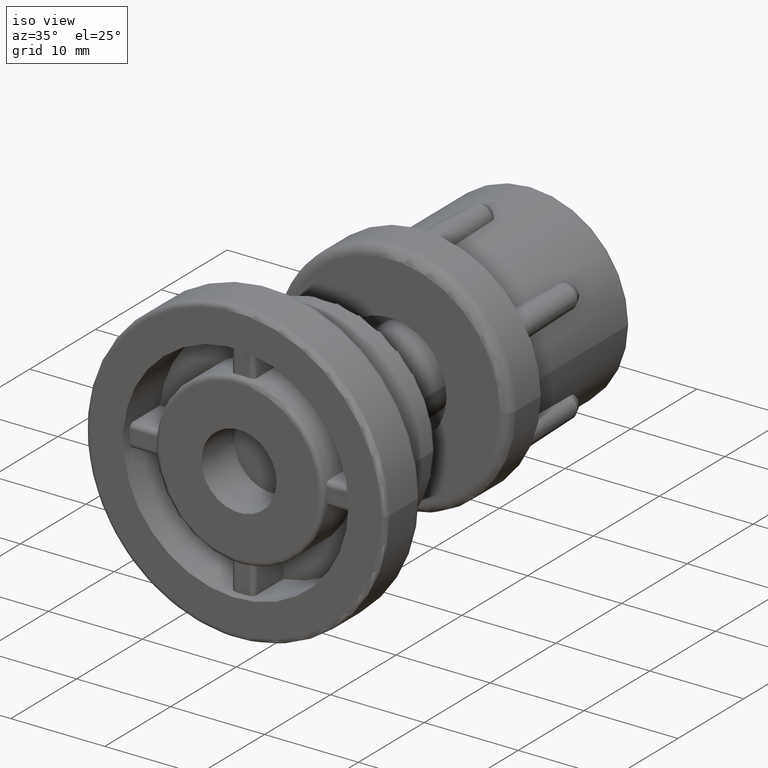
[diagram: clean part render]
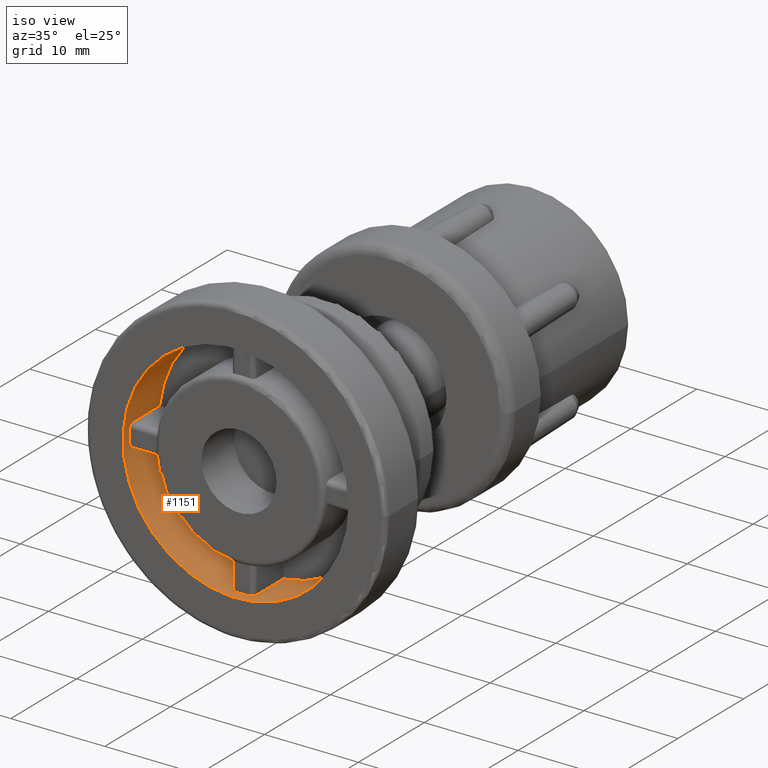
[diagram: same view with one face highlighted and labeled with its STEP entity id]
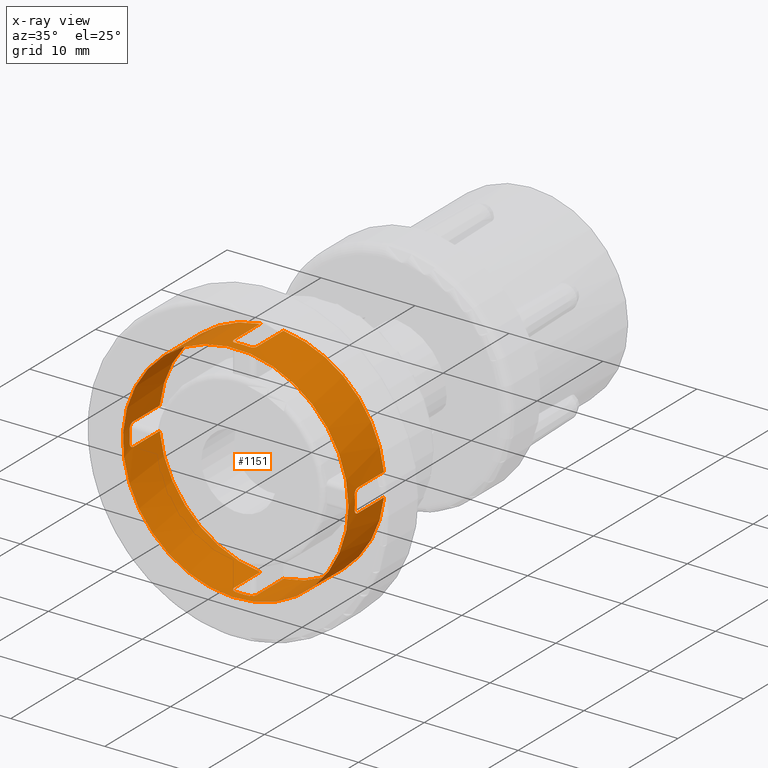
[diagram: x-ray of the same camera — body ghosted, the highlighted face saturated]
A machine part, iso view. The second image highlights one B-rep face of the part: STEP entity #1151.
The next image is the same camera in x-ray: the body ghosted, the highlighted face saturated — about 0% of this face is hidden behind the body in this view.
In plain terms, the highlighted cylindrical surface (bore or boss wall) has radius 12 mm, axis along (0, 1, 0).
Its self-contained STEP definition (entity closure, byte-faithful):
#52=FACE_BOUND('',#322,.T.);
#86=CIRCLE('',#1231,12.);
#93=CIRCLE('',#1245,12.);
#94=CIRCLE('',#1247,12.);
#95=CIRCLE('',#1249,12.);
#96=CIRCLE('',#1251,12.);
#97=CIRCLE('',#1253,12.);
#99=CIRCLE('',#1256,12.);
#100=CIRCLE('',#1258,12.);
#101=CIRCLE('',#1261,12.);
#231=FACE_OUTER_BOUND('',#321,.T.);
#321=EDGE_LOOP('',(#920,#921,#922,#923,#924,#925,#926,#927,#928,#929,#930,
#931,#932,#933,#934,#935,#936,#937,#938,#939,#940,#941,#942,#943));
#322=EDGE_LOOP('',(#944));
#380=LINE('',#1731,#420);
#383=LINE('',#1761,#423);
#390=LINE('',#1797,#430);
#393=LINE('',#1827,#433);
#400=LINE('',#1863,#440);
#403=LINE('',#1893,#443);
#410=LINE('',#1929,#450);
#413=LINE('',#1959,#453);
#420=VECTOR('',#1356,4.);
#423=VECTOR('',#1363,4.);
#430=VECTOR('',#1374,4.);
#433=VECTOR('',#1381,4.);
#440=VECTOR('',#1392,4.);
#443=VECTOR('',#1399,4.);
#450=VECTOR('',#1410,4.);
#453=VECTOR('',#1417,4.);
#457=B_SPLINE_CURVE_WITH_KNOTS('',3,(#1715,#1716,#1717,#1718,#1719,#1720,
#1721,#1722,#1723,#1724),.UNSPECIFIED.,.F.,.F.,(4,2,2,2,4),(-0.0754565969526208,
-0.0565650622235629,-0.037673527494505,-0.0188367637472525,0.),
 .UNSPECIFIED.);
#459=B_SPLINE_CURVE_WITH_KNOTS('',3,(#1748,#1749,#1750,#1751,#1752,#1753,
#1754,#1755,#1756,#1757),.UNSPECIFIED.,.F.,.F.,(4,2,2,2,4),(0.,0.0188367637472525,
0.0376735274945049,0.0565650622235629,0.0754565969526208),.UNSPECIFIED.);
#461=B_SPLINE_CURVE_WITH_KNOTS('',3,(#1781,#1782,#1783,#1784,#1785,#1786,
#1787,#1788,#1789,#1790),.UNSPECIFIED.,.F.,.F.,(4,2,2,2,4),(-0.0754565969526208,
-0.0565650622235629,-0.037673527494505,-0.0188367637472525,0.),
 .UNSPECIFIED.);
#463=B_SPLINE_CURVE_WITH_KNOTS('',3,(#1814,#1815,#1816,#1817,#1818,#1819,
#1820,#1821,#1822,#1823),.UNSPECIFIED.,.F.,.F.,(4,2,2,2,4),(0.,0.0188367637472525,
0.0376735274945049,0.0565650622235628,0.0754565969526208),.UNSPECIFIED.);
#465=B_SPLINE_CURVE_WITH_KNOTS('',3,(#1847,#1848,#1849,#1850,#1851,#1852,
#1853,#1854,#1855,#1856),.UNSPECIFIED.,.F.,.F.,(4,2,2,2,4),(-0.0754565969526208,
-0.0565650622235629,-0.037673527494505,-0.0188367637472525,0.),
 .UNSPECIFIED.);
#467=B_SPLINE_CURVE_WITH_KNOTS('',3,(#1880,#1881,#1882,#1883,#1884,#1885,
#1886,#1887,#1888,#1889),.UNSPECIFIED.,.F.,.F.,(4,2,2,2,4),(0.,0.0188367637472525,
0.0376735274945049,0.0565650622235628,0.0754565969526207),.UNSPECIFIED.);
#469=B_SPLINE_CURVE_WITH_KNOTS('',3,(#1913,#1914,#1915,#1916,#1917,#1918,
#1919,#1920,#1921,#1922),.UNSPECIFIED.,.F.,.F.,(4,2,2,2,4),(-0.0754565969526208,
-0.0565650622235629,-0.0376735274945049,-0.0188367637472525,0.),
 .UNSPECIFIED.);
#471=B_SPLINE_CURVE_WITH_KNOTS('',3,(#1946,#1947,#1948,#1949,#1950,#1951,
#1952,#1953,#1954,#1955),.UNSPECIFIED.,.F.,.F.,(4,2,2,2,4),(0.,0.0188367637472525,
0.0376735274945049,0.0565650622235628,0.0754565969526208),.UNSPECIFIED.);
#498=VERTEX_POINT('',#1712);
#499=VERTEX_POINT('',#1714);
#501=VERTEX_POINT('',#1729);
#504=VERTEX_POINT('',#1745);
#505=VERTEX_POINT('',#1747);
#506=VERTEX_POINT('',#1760);
#510=VERTEX_POINT('',#1778);
#511=VERTEX_POINT('',#1780);
#513=VERTEX_POINT('',#1795);
#516=VERTEX_POINT('',#1811);
#517=VERTEX_POINT('',#1813);
#518=VERTEX_POINT('',#1826);
#522=VERTEX_POINT('',#1844);
#523=VERTEX_POINT('',#1846);
#525=VERTEX_POINT('',#1861);
#528=VERTEX_POINT('',#1877);
#529=VERTEX_POINT('',#1879);
#530=VERTEX_POINT('',#1892);
#534=VERTEX_POINT('',#1910);
#535=VERTEX_POINT('',#1912);
#537=VERTEX_POINT('',#1927);
#540=VERTEX_POINT('',#1943);
#541=VERTEX_POINT('',#1945);
#542=VERTEX_POINT('',#1958);
#549=VERTEX_POINT('',#1992);
#611=EDGE_CURVE('',#498,#499,#457,.F.);
#615=EDGE_CURVE('',#498,#501,#380,.T.);
#618=EDGE_CURVE('',#504,#505,#459,.F.);
#620=EDGE_CURVE('',#506,#505,#383,.T.);
#625=EDGE_CURVE('',#510,#511,#461,.F.);
#629=EDGE_CURVE('',#510,#513,#390,.T.);
#632=EDGE_CURVE('',#516,#517,#463,.F.);
#634=EDGE_CURVE('',#518,#517,#393,.T.);
#639=EDGE_CURVE('',#522,#523,#465,.F.);
#643=EDGE_CURVE('',#522,#525,#400,.T.);
#646=EDGE_CURVE('',#528,#529,#467,.F.);
#648=EDGE_CURVE('',#530,#529,#403,.T.);
#653=EDGE_CURVE('',#534,#535,#469,.F.);
#657=EDGE_CURVE('',#534,#537,#410,.T.);
#660=EDGE_CURVE('',#540,#541,#471,.F.);
#662=EDGE_CURVE('',#542,#541,#413,.T.);
#681=EDGE_CURVE('',#549,#549,#86,.T.);
#688=EDGE_CURVE('',#540,#535,#93,.T.);
#689=EDGE_CURVE('',#504,#499,#94,.T.);
#690=EDGE_CURVE('',#516,#511,#95,.T.);
#691=EDGE_CURVE('',#525,#518,#96,.T.);
#692=EDGE_CURVE('',#513,#506,#97,.T.);
#694=EDGE_CURVE('',#501,#542,#99,.T.);
#695=EDGE_CURVE('',#537,#530,#100,.T.);
#696=EDGE_CURVE('',#528,#523,#101,.T.);
#920=ORIENTED_EDGE('',*,*,#657,.T.);
#921=ORIENTED_EDGE('',*,*,#695,.T.);
#922=ORIENTED_EDGE('',*,*,#648,.T.);
#923=ORIENTED_EDGE('',*,*,#646,.F.);
#924=ORIENTED_EDGE('',*,*,#696,.T.);
#925=ORIENTED_EDGE('',*,*,#639,.F.);
#926=ORIENTED_EDGE('',*,*,#643,.T.);
#927=ORIENTED_EDGE('',*,*,#691,.T.);
#928=ORIENTED_EDGE('',*,*,#634,.T.);
#929=ORIENTED_EDGE('',*,*,#632,.F.);
#930=ORIENTED_EDGE('',*,*,#690,.T.);
#931=ORIENTED_EDGE('',*,*,#625,.F.);
#932=ORIENTED_EDGE('',*,*,#629,.T.);
#933=ORIENTED_EDGE('',*,*,#692,.T.);
#934=ORIENTED_EDGE('',*,*,#620,.T.);
#935=ORIENTED_EDGE('',*,*,#618,.F.);
#936=ORIENTED_EDGE('',*,*,#689,.T.);
#937=ORIENTED_EDGE('',*,*,#611,.F.);
#938=ORIENTED_EDGE('',*,*,#615,.T.);
#939=ORIENTED_EDGE('',*,*,#694,.T.);
#940=ORIENTED_EDGE('',*,*,#662,.T.);
#941=ORIENTED_EDGE('',*,*,#660,.F.);
#942=ORIENTED_EDGE('',*,*,#688,.T.);
#943=ORIENTED_EDGE('',*,*,#653,.F.);
#944=ORIENTED_EDGE('',*,*,#681,.F.);
#1101=CYLINDRICAL_SURFACE('',#1265,12.);
#1151=ADVANCED_FACE('',(#231,#52),#1101,.F.);
#1231=AXIS2_PLACEMENT_3D('',#1993,#1468,#1469);
#1245=AXIS2_PLACEMENT_3D('',#2013,#1496,#1497);
#1247=AXIS2_PLACEMENT_3D('',#2015,#1500,#1501);
#1249=AXIS2_PLACEMENT_3D('',#2017,#1504,#1505);
#1251=AXIS2_PLACEMENT_3D('',#2019,#1508,#1509);
#1253=AXIS2_PLACEMENT_3D('',#2021,#1512,#1513);
#1256=AXIS2_PLACEMENT_3D('',#2024,#1518,#1519);
#1258=AXIS2_PLACEMENT_3D('',#2026,#1522,#1523);
#1261=AXIS2_PLACEMENT_3D('',#2029,#1528,#1529);
#1265=AXIS2_PLACEMENT_3D('',#2034,#1536,#1537);
#1356=DIRECTION('',(0.,1.,0.));
#1363=DIRECTION('',(0.,-1.,0.));
#1374=DIRECTION('',(0.,1.,0.));
#1381=DIRECTION('',(0.,-1.,0.));
#1392=DIRECTION('',(0.,1.,0.));
#1399=DIRECTION('',(0.,-1.,0.));
#1410=DIRECTION('',(0.,1.,0.));
#1417=DIRECTION('',(0.,-1.,0.));
#1468=DIRECTION('center_axis',(-6.34413156928661E-17,1.,0.));
#1469=DIRECTION('ref_axis',(-1.,0.,0.));
#1496=DIRECTION('center_axis',(0.,1.,0.));
#1497=DIRECTION('ref_axis',(-1.,0.,0.));
#1500=DIRECTION('center_axis',(0.,1.,0.));
#1501=DIRECTION('ref_axis',(-1.,0.,0.));
#1504=DIRECTION('center_axis',(0.,1.,0.));
#1505=DIRECTION('ref_axis',(-1.,0.,0.));
#1508=DIRECTION('center_axis',(-6.34413156928661E-17,1.,0.));
#1509=DIRECTION('ref_axis',(-1.,-6.34413156928661E-17,0.));
#1512=DIRECTION('center_axis',(-6.34413156928661E-17,1.,0.));
#1513=DIRECTION('ref_axis',(-1.,-6.34413156928661E-17,0.));
#1518=DIRECTION('center_axis',(-6.34413156928661E-17,1.,0.));
#1519=DIRECTION('ref_axis',(-1.,-6.34413156928661E-17,0.));
#1522=DIRECTION('center_axis',(-6.34413156928661E-17,1.,0.));
#1523=DIRECTION('ref_axis',(-1.,-6.34413156928661E-17,0.));
#1528=DIRECTION('center_axis',(0.,1.,0.));
#1529=DIRECTION('ref_axis',(-1.,0.,0.));
#1536=DIRECTION('center_axis',(0.,1.,0.));
#1537=DIRECTION('ref_axis',(-1.,0.,0.));
#1712=CARTESIAN_POINT('',(-11.9373102079154,1.5,1.225));
#1714=CARTESIAN_POINT('',(-11.9780789361233,1.,0.724999999999999));
#1715=CARTESIAN_POINT('Ctrl Pts',(-11.9780789361233,1.,0.724999999999999));
#1716=CARTESIAN_POINT('Ctrl Pts',(-11.9742743909348,1.,0.787856748391434));
#1717=CARTESIAN_POINT('Ctrl Pts',(-11.9696707944417,1.01257367721032,0.854868964120006));
#1718=CARTESIAN_POINT('Ctrl Pts',(-11.9602301282645,1.06367264565834,0.978118168805255));
#1719=CARTESIAN_POINT('Ctrl Pts',(-11.9554210529607,1.10219702860214,1.03435767705418));
#1720=CARTESIAN_POINT('Ctrl Pts',(-11.9474154491353,1.19099702501983,1.12304983447038));
#1721=CARTESIAN_POINT('Ctrl Pts',(-11.9436860692694,1.2471564277975,1.16147283190642));
#1722=CARTESIAN_POINT('Ctrl Pts',(-11.9386189943723,1.37026226700893,1.21244899645157));
#1723=CARTESIAN_POINT('Ctrl Pts',(-11.9373102079153,1.43721078750916,1.225));
#1724=CARTESIAN_POINT('Ctrl Pts',(-11.9373102079154,1.5,1.225));
#1729=CARTESIAN_POINT('',(-11.9373102079154,5.5,1.225));
#1731=CARTESIAN_POINT('',(-11.9373102079154,0.,1.225));
#1745=CARTESIAN_POINT('',(-11.9780789361233,1.,-0.725000000000001));
#1747=CARTESIAN_POINT('',(-11.9373102079154,1.5,-1.225));
#1748=CARTESIAN_POINT('Ctrl Pts',(-11.9373102079154,1.5,-1.225));
#1749=CARTESIAN_POINT('Ctrl Pts',(-11.9373102079154,1.43721078750916,-1.225));
#1750=CARTESIAN_POINT('Ctrl Pts',(-11.9386189943723,1.37026226700893,-1.21244899645157));
#1751=CARTESIAN_POINT('Ctrl Pts',(-11.9436860692694,1.2471564277975,-1.16147283190642));
#1752=CARTESIAN_POINT('Ctrl Pts',(-11.9474154491353,1.19099702501983,-1.12304983447038));
#1753=CARTESIAN_POINT('Ctrl Pts',(-11.9554210529607,1.10219702860214,-1.03435767705418));
#1754=CARTESIAN_POINT('Ctrl Pts',(-11.9602301282645,1.06367264565834,-0.978118168805258));
#1755=CARTESIAN_POINT('Ctrl Pts',(-11.9696707944416,1.01257367721032,-0.854868964120009));
#1756=CARTESIAN_POINT('Ctrl Pts',(-11.9742743909348,1.,-0.787856748391438));
#1757=CARTESIAN_POINT('Ctrl Pts',(-11.9780789361233,1.,-0.725000000000001));
#1760=CARTESIAN_POINT('',(-11.9373102079154,5.5,-1.225));
#1761=CARTESIAN_POINT('',(-11.9373102079154,0.,-1.225));
#1778=CARTESIAN_POINT('',(-1.225,1.5,-11.9373102079154));
#1780=CARTESIAN_POINT('',(-0.724999999999999,1.,-11.9780789361233));
#1781=CARTESIAN_POINT('Ctrl Pts',(-0.724999999999999,1.,-11.9780789361233));
#1782=CARTESIAN_POINT('Ctrl Pts',(-0.787856748391435,1.,-11.9742743909348));
#1783=CARTESIAN_POINT('Ctrl Pts',(-0.854868964120007,1.01257367721032,-11.9696707944417));
#1784=CARTESIAN_POINT('Ctrl Pts',(-0.978118168805256,1.06367264565834,-11.9602301282645));
#1785=CARTESIAN_POINT('Ctrl Pts',(-1.03435767705418,1.10219702860214,-11.9554210529607));
#1786=CARTESIAN_POINT('Ctrl Pts',(-1.12304983447038,1.19099702501983,-11.9474154491353));
#1787=CARTESIAN_POINT('Ctrl Pts',(-1.16147283190642,1.2471564277975,-11.9436860692694));
#1788=CARTESIAN_POINT('Ctrl Pts',(-1.21244899645157,1.37026226700893,-11.9386189943723));
#1789=CARTESIAN_POINT('Ctrl Pts',(-1.225,1.43721078750916,-11.9373102079153));
#1790=CARTESIAN_POINT('Ctrl Pts',(-1.225,1.5,-11.9373102079154));
#1795=CARTESIAN_POINT('',(-1.225,5.5,-11.9373102079154));
#1797=CARTESIAN_POINT('',(-1.225,0.,-11.9373102079154));
#1811=CARTESIAN_POINT('',(0.725000000000001,1.,-11.9780789361233));
#1813=CARTESIAN_POINT('',(1.225,1.5,-11.9373102079154));
#1814=CARTESIAN_POINT('Ctrl Pts',(1.225,1.5,-11.9373102079154));
#1815=CARTESIAN_POINT('Ctrl Pts',(1.225,1.43721078750916,-11.9373102079154));
#1816=CARTESIAN_POINT('Ctrl Pts',(1.21244899645157,1.37026226700893,-11.9386189943723));
#1817=CARTESIAN_POINT('Ctrl Pts',(1.16147283190642,1.2471564277975,-11.9436860692694));
#1818=CARTESIAN_POINT('Ctrl Pts',(1.12304983447038,1.19099702501983,-11.9474154491353));
#1819=CARTESIAN_POINT('Ctrl Pts',(1.03435767705418,1.10219702860214,-11.9554210529607));
#1820=CARTESIAN_POINT('Ctrl Pts',(0.978118168805258,1.06367264565834,-11.9602301282645));
#1821=CARTESIAN_POINT('Ctrl Pts',(0.854868964120009,1.01257367721032,-11.9696707944417));
#1822=CARTESIAN_POINT('Ctrl Pts',(0.787856748391437,1.,-11.9742743909348));
#1823=CARTESIAN_POINT('Ctrl Pts',(0.725000000000001,1.,-11.9780789361233));
#1826=CARTESIAN_POINT('',(1.225,5.5,-11.9373102079154));
#1827=CARTESIAN_POINT('',(1.225,0.,-11.9373102079154));
#1844=CARTESIAN_POINT('',(11.9373102079154,1.5,-1.225));
#1846=CARTESIAN_POINT('',(11.9780789361233,1.,-0.725));
#1847=CARTESIAN_POINT('Ctrl Pts',(11.9780789361233,1.,-0.725));
#1848=CARTESIAN_POINT('Ctrl Pts',(11.9742743909348,1.,-0.787856748391436));
#1849=CARTESIAN_POINT('Ctrl Pts',(11.9696707944417,1.01257367721032,-0.854868964120008));
#1850=CARTESIAN_POINT('Ctrl Pts',(11.9602301282645,1.06367264565834,-0.978118168805257));
#1851=CARTESIAN_POINT('Ctrl Pts',(11.9554210529607,1.10219702860214,-1.03435767705418));
#1852=CARTESIAN_POINT('Ctrl Pts',(11.9474154491353,1.19099702501983,-1.12304983447038));
#1853=CARTESIAN_POINT('Ctrl Pts',(11.9436860692694,1.2471564277975,-1.16147283190642));
#1854=CARTESIAN_POINT('Ctrl Pts',(11.9386189943723,1.37026226700893,-1.21244899645157));
#1855=CARTESIAN_POINT('Ctrl Pts',(11.9373102079154,1.43721078750916,-1.225));
#1856=CARTESIAN_POINT('Ctrl Pts',(11.9373102079154,1.5,-1.225));
#1861=CARTESIAN_POINT('',(11.9373102079154,5.5,-1.225));
#1863=CARTESIAN_POINT('',(11.9373102079154,0.,-1.225));
#1877=CARTESIAN_POINT('',(11.9780789361233,1.,0.725));
#1879=CARTESIAN_POINT('',(11.9373102079154,1.5,1.225));
#1880=CARTESIAN_POINT('Ctrl Pts',(11.9373102079154,1.5,1.225));
#1881=CARTESIAN_POINT('Ctrl Pts',(11.9373102079154,1.43721078750916,1.225));
#1882=CARTESIAN_POINT('Ctrl Pts',(11.9386189943723,1.37026226700893,1.21244899645157));
#1883=CARTESIAN_POINT('Ctrl Pts',(11.9436860692694,1.2471564277975,1.16147283190642));
#1884=CARTESIAN_POINT('Ctrl Pts',(11.9474154491353,1.19099702501983,1.12304983447038));
#1885=CARTESIAN_POINT('Ctrl Pts',(11.9554210529607,1.10219702860214,1.03435767705418));
#1886=CARTESIAN_POINT('Ctrl Pts',(11.9602301282645,1.06367264565834,0.978118168805257));
#1887=CARTESIAN_POINT('Ctrl Pts',(11.9696707944417,1.01257367721032,0.854868964120008));
#1888=CARTESIAN_POINT('Ctrl Pts',(11.9742743909348,1.,0.787856748391436));
#1889=CARTESIAN_POINT('Ctrl Pts',(11.9780789361233,1.,0.725));
#1892=CARTESIAN_POINT('',(11.9373102079154,5.5,1.225));
#1893=CARTESIAN_POINT('',(11.9373102079154,0.,1.225));
#1910=CARTESIAN_POINT('',(1.225,1.5,11.9373102079154));
#1912=CARTESIAN_POINT('',(0.724999999999998,1.,11.9780789361233));
#1913=CARTESIAN_POINT('Ctrl Pts',(0.724999999999998,1.,11.9780789361233));
#1914=CARTESIAN_POINT('Ctrl Pts',(0.787856748391434,1.,11.9742743909348));
#1915=CARTESIAN_POINT('Ctrl Pts',(0.854868964120006,1.01257367721032,11.9696707944417));
#1916=CARTESIAN_POINT('Ctrl Pts',(0.978118168805255,1.06367264565834,11.9602301282645));
#1917=CARTESIAN_POINT('Ctrl Pts',(1.03435767705418,1.10219702860214,11.9554210529607));
#1918=CARTESIAN_POINT('Ctrl Pts',(1.12304983447038,1.19099702501983,11.9474154491353));
#1919=CARTESIAN_POINT('Ctrl Pts',(1.16147283190642,1.2471564277975,11.9436860692694));
#1920=CARTESIAN_POINT('Ctrl Pts',(1.21244899645157,1.37026226700893,11.9386189943723));
#1921=CARTESIAN_POINT('Ctrl Pts',(1.225,1.43721078750916,11.9373102079154));
#1922=CARTESIAN_POINT('Ctrl Pts',(1.225,1.5,11.9373102079154));
#1927=CARTESIAN_POINT('',(1.225,5.5,11.9373102079154));
#1929=CARTESIAN_POINT('',(1.225,0.,11.9373102079154));
#1943=CARTESIAN_POINT('',(-0.725000000000002,1.,11.9780789361233));
#1945=CARTESIAN_POINT('',(-1.225,1.5,11.9373102079154));
#1946=CARTESIAN_POINT('Ctrl Pts',(-1.225,1.5,11.9373102079154));
#1947=CARTESIAN_POINT('Ctrl Pts',(-1.225,1.43721078750916,11.9373102079154));
#1948=CARTESIAN_POINT('Ctrl Pts',(-1.21244899645158,1.37026226700893,11.9386189943723));
#1949=CARTESIAN_POINT('Ctrl Pts',(-1.16147283190643,1.2471564277975,11.9436860692694));
#1950=CARTESIAN_POINT('Ctrl Pts',(-1.12304983447038,1.19099702501983,11.9474154491353));
#1951=CARTESIAN_POINT('Ctrl Pts',(-1.03435767705418,1.10219702860214,11.9554210529607));
#1952=CARTESIAN_POINT('Ctrl Pts',(-0.97811816880526,1.06367264565834,11.9602301282645));
#1953=CARTESIAN_POINT('Ctrl Pts',(-0.85486896412001,1.01257367721032,11.9696707944416));
#1954=CARTESIAN_POINT('Ctrl Pts',(-0.787856748391439,1.,11.9742743909348));
#1955=CARTESIAN_POINT('Ctrl Pts',(-0.725000000000002,1.,11.9780789361233));
#1958=CARTESIAN_POINT('',(-1.225,5.5,11.9373102079154));
#1959=CARTESIAN_POINT('',(-1.225,0.,11.9373102079154));
#1992=CARTESIAN_POINT('',(12.,7.61295788314393E-16,1.46957615897682E-15));
#1993=CARTESIAN_POINT('Origin',(0.,0.,0.));
#2013=CARTESIAN_POINT('Origin',(0.,1.,0.));
#2015=CARTESIAN_POINT('Origin',(0.,1.,0.));
#2017=CARTESIAN_POINT('Origin',(0.,1.,0.));
#2019=CARTESIAN_POINT('Origin',(0.,5.5,0.));
#2021=CARTESIAN_POINT('Origin',(0.,5.5,0.));
#2024=CARTESIAN_POINT('Origin',(0.,5.5,0.));
#2026=CARTESIAN_POINT('Origin',(0.,5.5,0.));
#2029=CARTESIAN_POINT('Origin',(0.,1.,0.));
#2034=CARTESIAN_POINT('Origin',(0.,0.,0.));